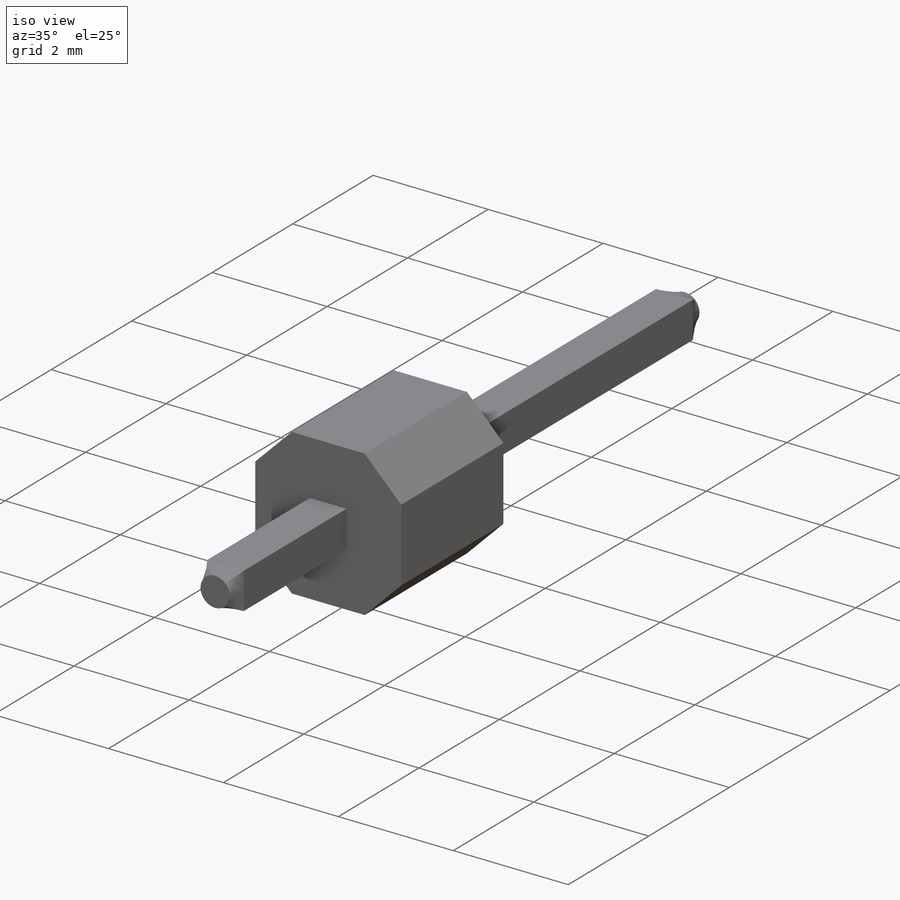
[diagram: iso view]
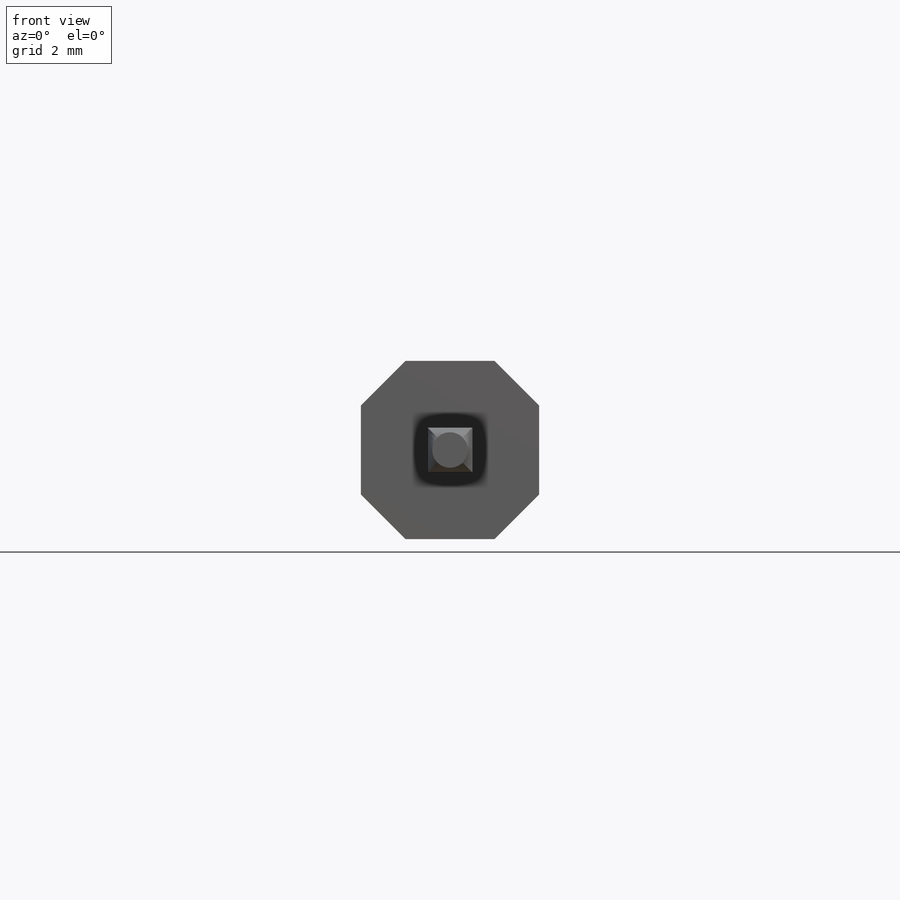
[diagram: front view]
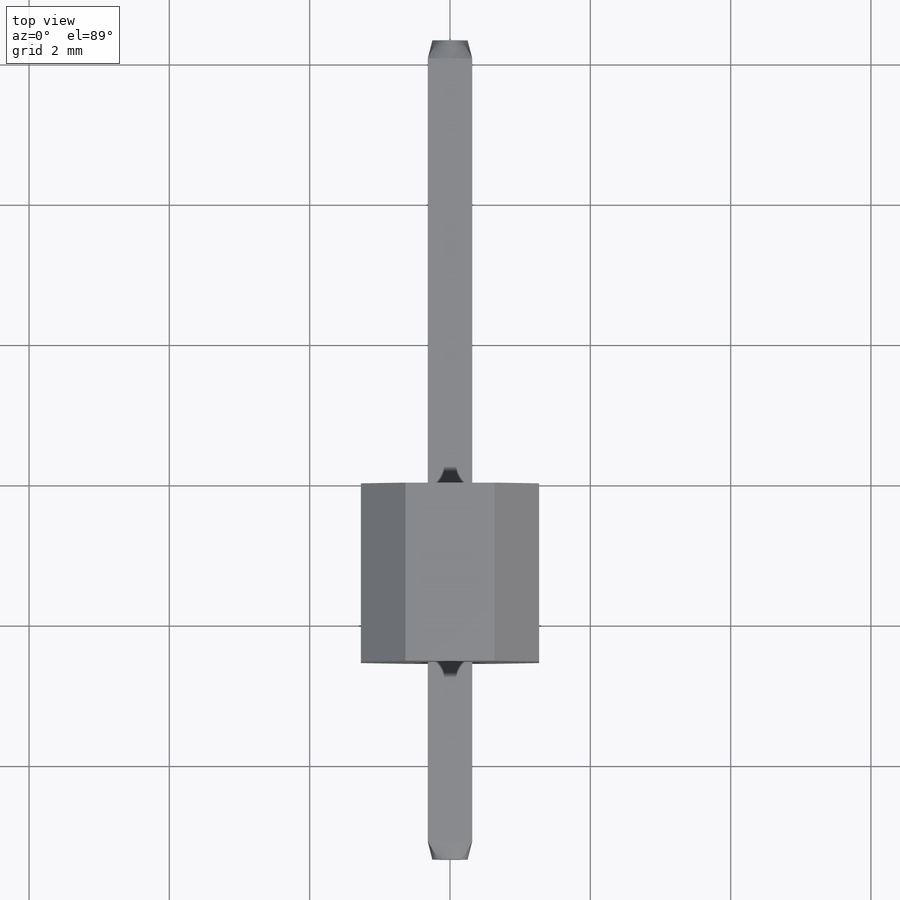
[diagram: top view]
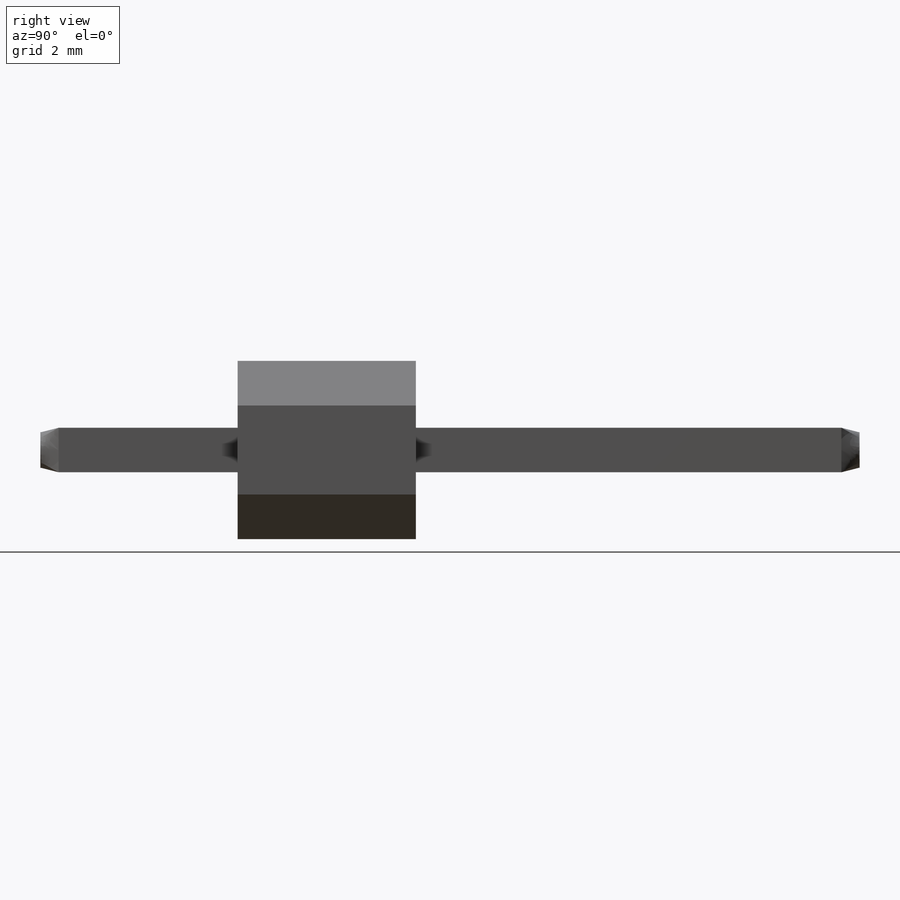
[diagram: right view]
SOLIDWORKS PART (.sldprt)
format: sldprt  version: not decoded by parser v0  size: 218,624 bytes
history: native  units: mm
features: sketch x6, extrude x5, plane x3, material x1 (+11 scaffold rows collapsed)
feature tree (26):
  scaffold x11  (default folders/planes/origin — collapsed)
  material  "Material <not specified>"
  plane  "Plane1"  Offset=5.092mm
  plane  "Plane2"  Offset=0.25mm
  sketch  "Sketch1"  dims[D1=0.635mm D2=0.635mm]
  extrude  "Boss-Extrude1"  Depth=11.157mm
  sketch  "Sketch2"  dims[D1=2.54mm D2=2.54mm]
  extrude  "Boss-Extrude2"  Depth=2.54mm
  sketch  "Sketch3"  dims[D1=0.508mm]
  plane  "Plane3"  Offset=0.25mm
  sketch  "Sketch4"  dims[D1=0.508mm]
  extrude  "Loft2"  [1 undecoded]
  sketch  "Sketch6"  dims[D1=0.508mm]
  extrude  "Boss-Extrude3"  Depth=0.01mm
  sketch  "Sketch7"  dims[D1=0.508mm]
  extrude  "Boss-Extrude4"  Depth=0.01mm
decode coverage: 10 of 11 modeling features carry decoded parameters
note: 1 parameter value undecoded
note: suppression state not decoded; provenance and decode notes live in map.json
